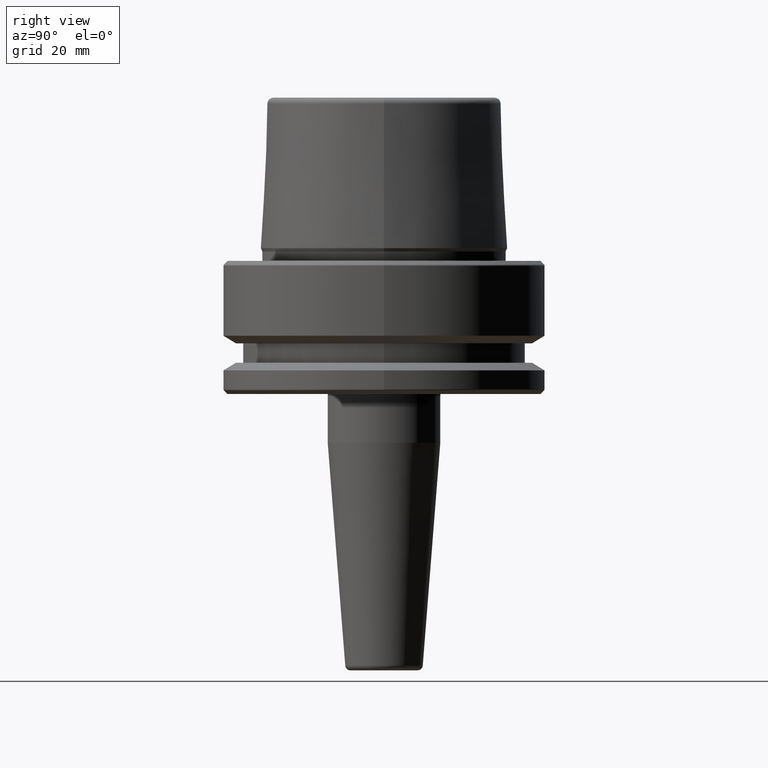
[diagram: clean part render]
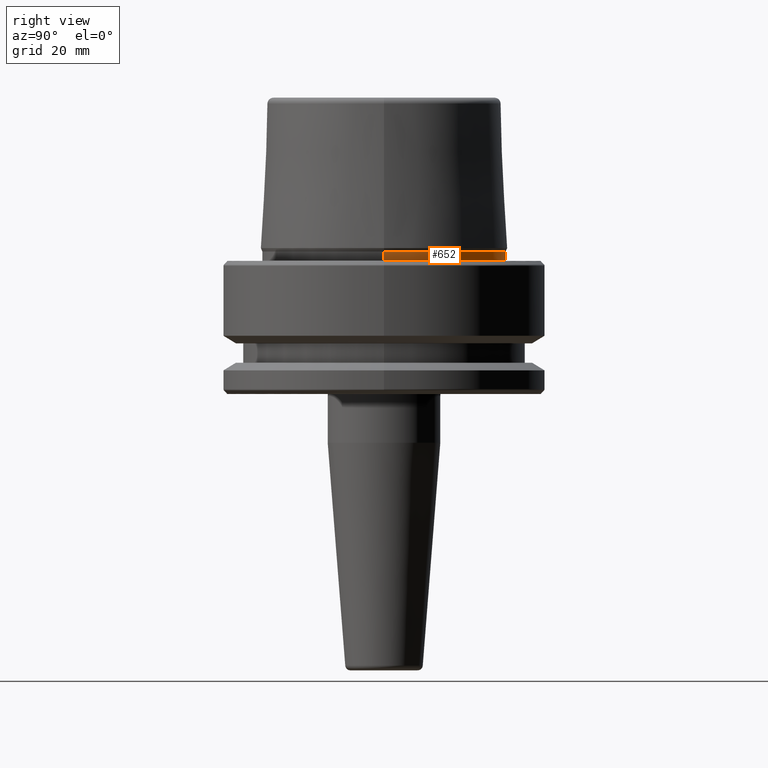
[diagram: same view with one face highlighted and labeled with its STEP entity id]
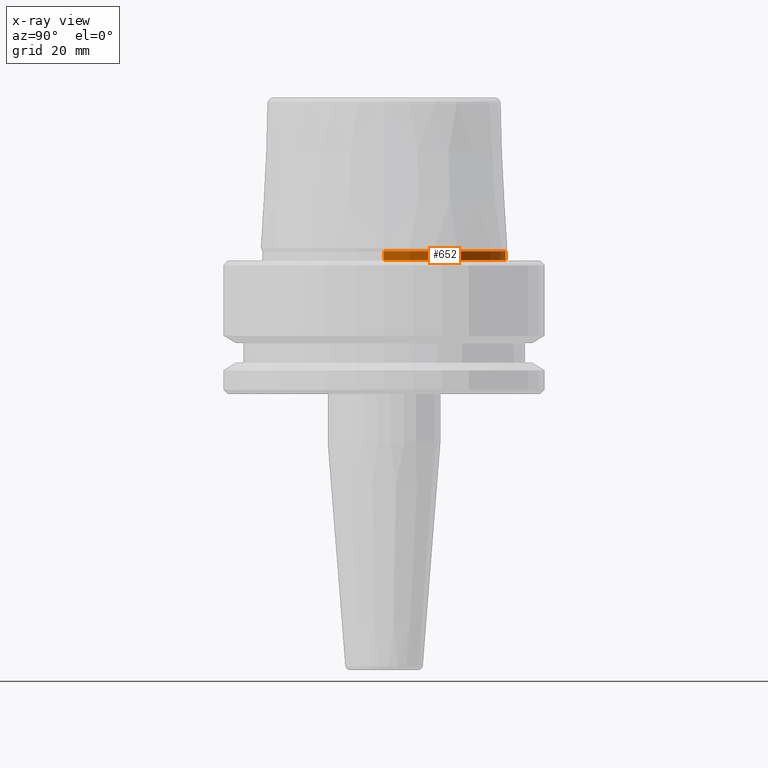
[diagram: x-ray of the same camera — body ghosted, the highlighted face saturated]
A machine part, right view. The second image highlights one B-rep face of the part: STEP entity #652.
The next image is the same camera in x-ray: the body ghosted, the highlighted face saturated — about 0% of this face is hidden behind the body in this view.
In plain terms, the highlighted cylindrical surface (partial cylindrical patch) has radius 23.89 mm, axis along (-0, -0, 1).
Its self-contained STEP definition (entity closure, byte-faithful):
#4 = CARTESIAN_POINT ( 'NONE',  ( 23.89000000000000100, 0.0000000000000000000, 78.96908074195309300 ) ) ;
#22 = CIRCLE ( 'NONE', #427, 23.89000000000000100 ) ;
#60 = EDGE_CURVE ( 'NONE', #899, #554, #968, .T. ) ;
#61 = DIRECTION ( 'NONE',  ( -0.0000000000000000000, -0.0000000000000000000, 1.000000000000000000 ) ) ;
#93 = CARTESIAN_POINT ( 'NONE',  ( 0.0000000000000000000, 0.0000000000000000000, 78.96908074195309300 ) ) ;
#115 = ORIENTED_EDGE ( 'NONE', *, *, #60, .F. ) ;
#182 = DIRECTION ( 'NONE',  ( -0.0000000000000000000, -0.0000000000000000000, 1.000000000000000000 ) ) ;
#236 = CYLINDRICAL_SURFACE ( 'NONE', #988, 23.89000000000000100 ) ;
#249 = DIRECTION ( 'NONE',  ( -0.0000000000000000000, -0.0000000000000000000, 1.000000000000000000 ) ) ;
#288 = VERTEX_POINT ( 'NONE', #1232 ) ;
#333 = CIRCLE ( 'NONE', #411, 23.89000000000000400 ) ;
#384 = DIRECTION ( 'NONE',  ( 1.000000000000000000, 0.0000000000000000000, 0.0000000000000000000 ) ) ;
#411 = AXIS2_PLACEMENT_3D ( 'NONE', #761, #182, #854 ) ;
#427 = AXIS2_PLACEMENT_3D ( 'NONE', #635, #61, #733 ) ;
#460 = CARTESIAN_POINT ( 'NONE',  ( 23.89000000000000100, 0.0000000000000000000, 1.845119734979375100 ) ) ;
#554 = VERTEX_POINT ( 'NONE', #460 ) ;
#604 = EDGE_CURVE ( 'NONE', #899, #288, #333, .T. ) ;
#635 = CARTESIAN_POINT ( 'NONE',  ( 0.0000000000000000000, 0.0000000000000000000, 1.845119734979375100 ) ) ;
#652 = ADVANCED_FACE ( 'NONE', ( #752 ), #236, .T. ) ;
#654 = VECTOR ( 'NONE', #702, 1000.000000000000000 ) ;
#702 = DIRECTION ( 'NONE',  ( -0.0000000000000000000, -0.0000000000000000000, 1.000000000000000000 ) ) ;
#713 = VECTOR ( 'NONE', #249, 1000.000000000000000 ) ;
#733 = DIRECTION ( 'NONE',  ( 1.000000000000000000, 0.0000000000000000000, 0.0000000000000000000 ) ) ;
#735 = ORIENTED_EDGE ( 'NONE', *, *, #1026, .F. ) ;
#741 = EDGE_LOOP ( 'NONE', ( #827, #916, #735, #115 ) ) ;
#752 = FACE_OUTER_BOUND ( 'NONE', #741, .T. ) ;
#761 = CARTESIAN_POINT ( 'NONE',  ( 0.0000000000000000000, 0.0000000000000000000, 0.1312552021302954000 ) ) ;
#827 = ORIENTED_EDGE ( 'NONE', *, *, #604, .T. ) ;
#854 = DIRECTION ( 'NONE',  ( 1.000000000000000000, 0.0000000000000000000, 0.0000000000000000000 ) ) ;
#867 = EDGE_CURVE ( 'NONE', #288, #942, #906, .T. ) ;
#899 = VERTEX_POINT ( 'NONE', #1091 ) ;
#906 = LINE ( 'NONE', #1089, #654 ) ;
#916 = ORIENTED_EDGE ( 'NONE', *, *, #867, .T. ) ;
#942 = VERTEX_POINT ( 'NONE', #1104 ) ;
#968 = LINE ( 'NONE', #4, #713 ) ;
#988 = AXIS2_PLACEMENT_3D ( 'NONE', #93, #1257, #384 ) ;
#1026 = EDGE_CURVE ( 'NONE', #554, #942, #22, .T. ) ;
#1089 = CARTESIAN_POINT ( 'NONE',  ( -23.89000000000000100, 2.925681203163027000E-015, 78.96908074195309300 ) ) ;
#1091 = CARTESIAN_POINT ( 'NONE',  ( 23.89000000000000400, 0.0000000000000000000, 0.1312552021302954000 ) ) ;
#1104 = CARTESIAN_POINT ( 'NONE',  ( -23.89000000000000100, 2.944380070784114200E-015, 1.845119734979375100 ) ) ;
#1232 = CARTESIAN_POINT ( 'NONE',  ( -23.89000000000000400, 2.961613815265650600E-015, 0.1312552021302954000 ) ) ;
#1257 = DIRECTION ( 'NONE',  ( -0.0000000000000000000, -0.0000000000000000000, 1.000000000000000000 ) ) ;